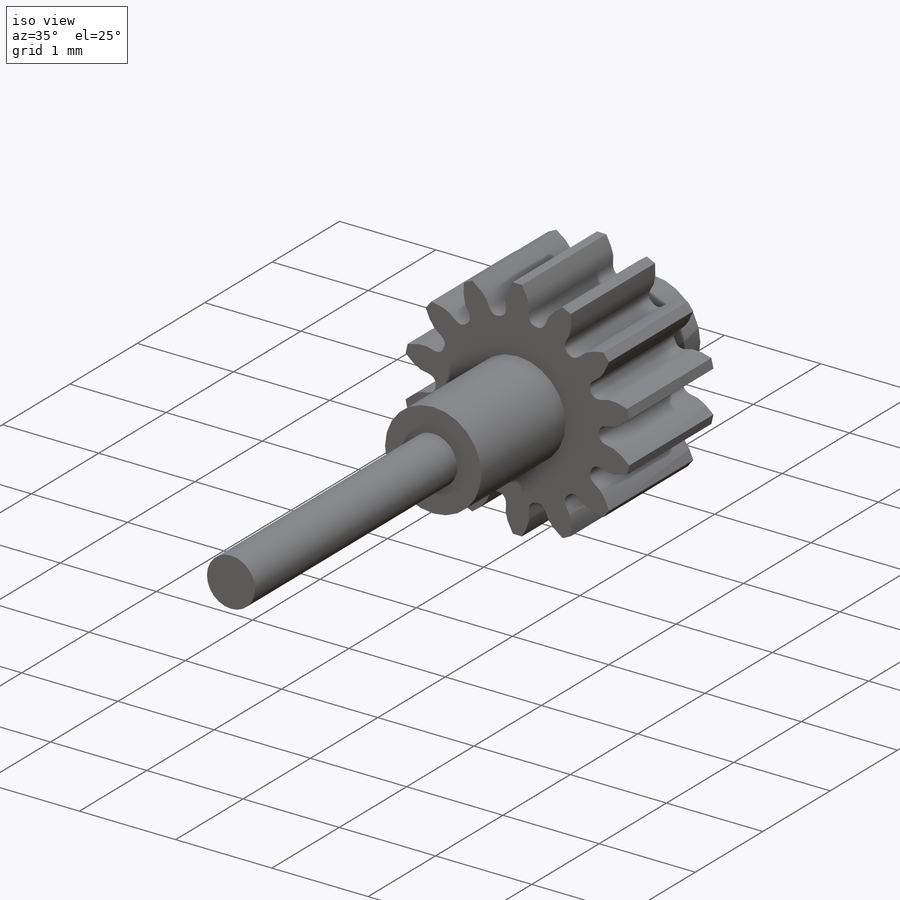
[diagram: iso view]
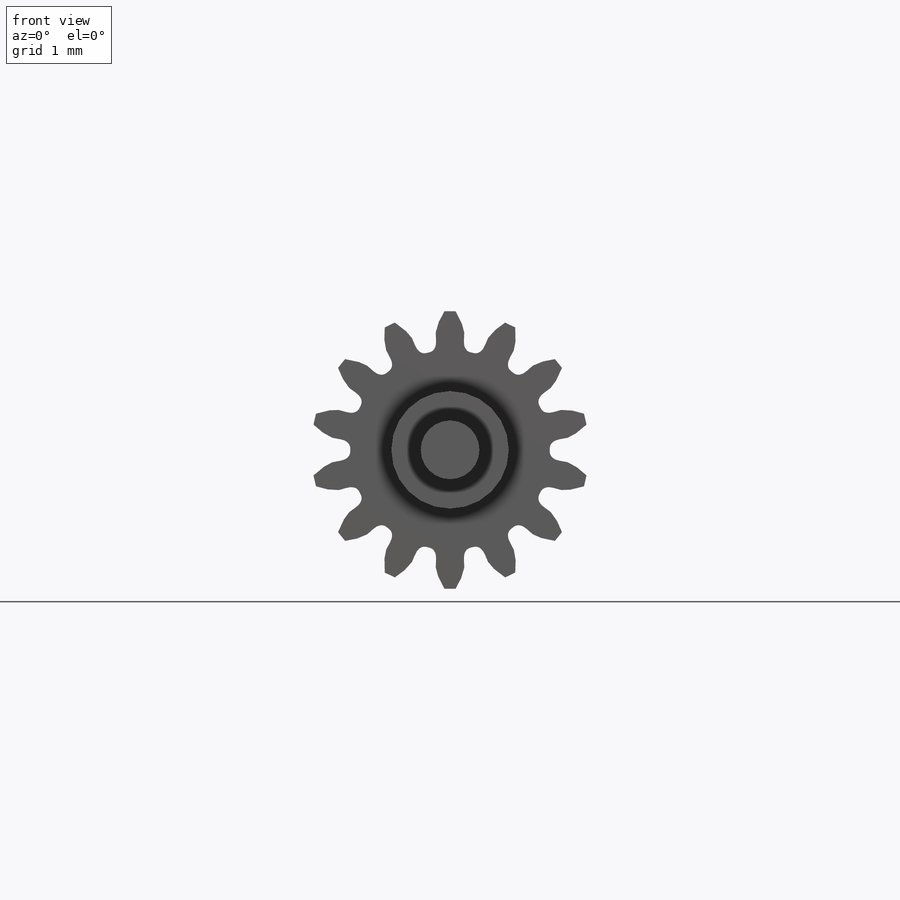
[diagram: front view]
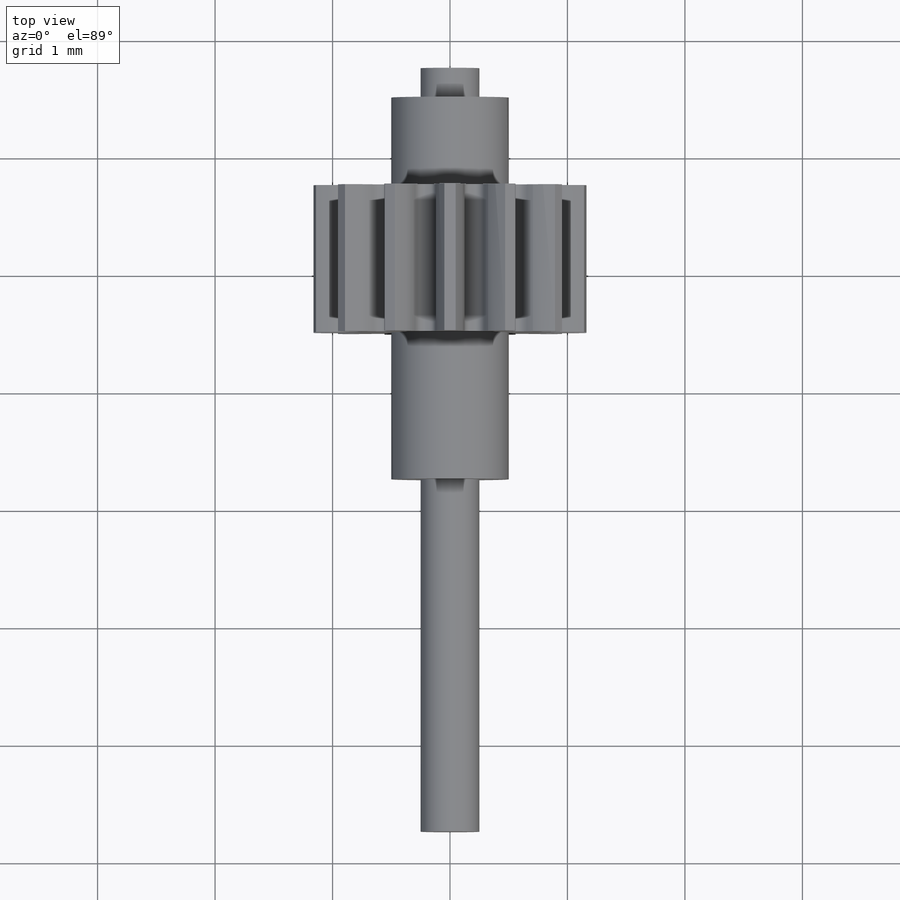
[diagram: top view]
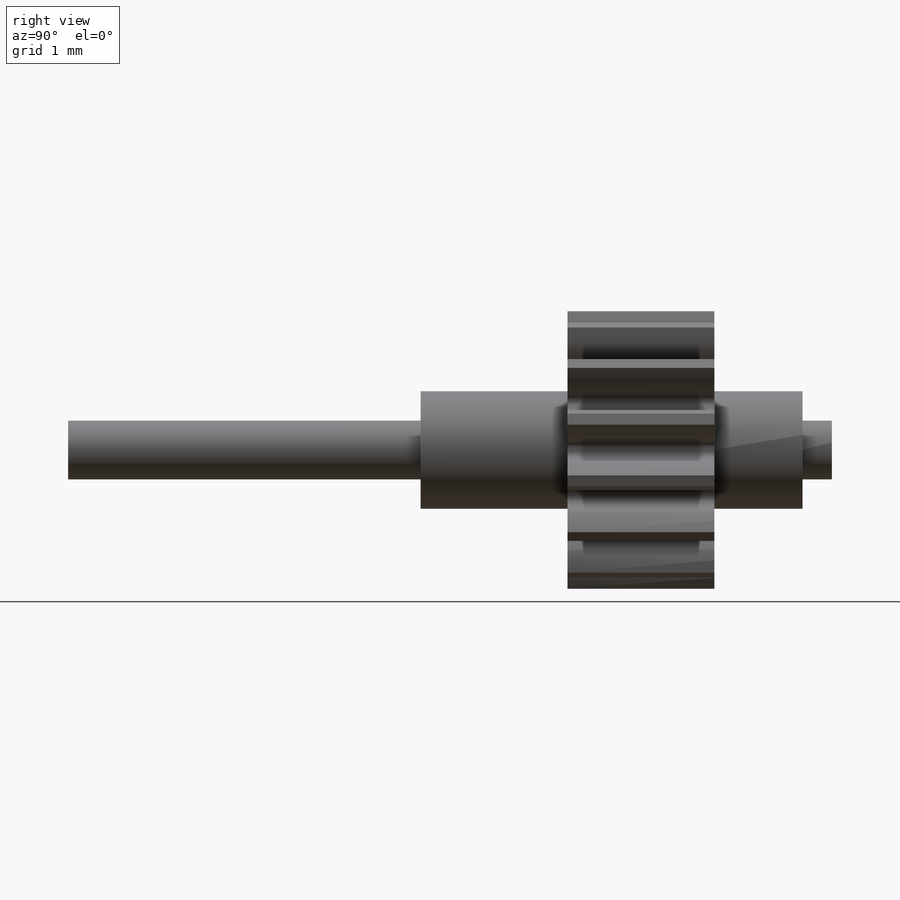
[diagram: right view]
SOLIDWORKS PART (.sldprt)
format: sldprt  version: not decoded by parser v0  size: 405,504 bytes
history: native  units: mm
features: sketch x7, extrude x4, plane x3, material x1, revolve x1, cut_extrude x1, pattern_circular x1 (+8 scaffold rows collapsed)
feature tree (26):
  scaffold x8  (default folders/planes/origin — collapsed)
  material  "Material <sin especificar>"
  plane  "Alzado"
  plane  "Planta"
  plane  "Vista lateral"
  sketch  "SketchRevolveSpur02"  dims[D1=1.25mm]
  revolve  "Spur02"  Angle=360deg
  sketch  "SketchToothSpur02"
  cut_extrude  "ToothExtrudeCutSpur02"  Depth=0.5mm
  pattern_circular  "PatternSpur02"  Count=14 Angle=25.714286deg
  sketch  "AuxiliarySketchSpur02"  dims[PitchDiameter=~2.068182mm BaseDiameter=~1.943455mm FormDiameter=~1.953918mm MajorDiameter=~2.363636mm MinorDiameter=~1.698864mm]
  sketch  "Croquis1"  dims[D1=1.0mm]
  extrude  "Saliente-Extruir1"  Depth=0.75mm
  sketch  "Croquis2"  dims[D1=0.5mm]
  extrude  "Saliente-Extruir2"  Depth=0.25mm
  sketch  "Croquis3"  dims[D1=1.0mm]
  extrude  "Saliente-Extruir3"  Depth=1.25mm
  sketch  "Croquis4"  dims[D1=0.5mm]
  extrude  "Saliente-Extruir4"  Depth=3mm
decode coverage: 13 of 14 modeling features carry decoded parameters
note: ~ marks probable driven/reference dimensions
note: suppression state not decoded; provenance and decode notes live in map.json
